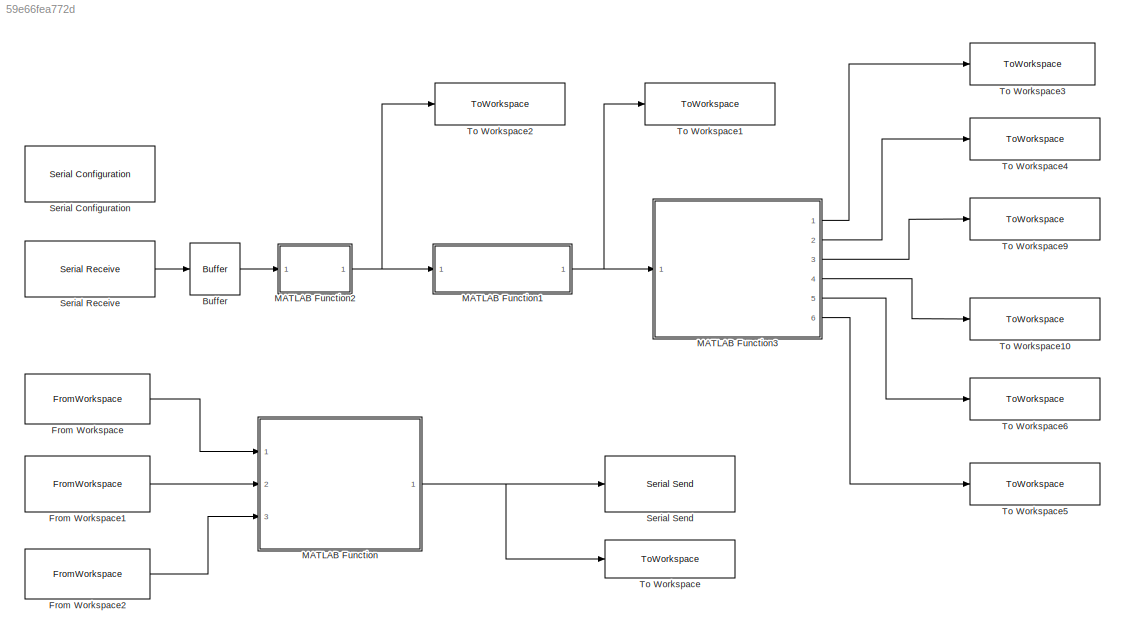
MODEL slx_59e66fea772d
KIND model
CONFIG AbsTol = auto
CONFIG EnableMultiTasking = off
CONFIG FixedStep = auto
CONFIG MaxStep = auto
CONFIG MinStep = auto
CONFIG RelTol = 1e-3
CONFIG SampleTimeConstraint = Unconstrained
CONFIG Solver = VariableStepAuto
CONFIG SolverName = VariableStepAuto
CONFIG StartTime = 0.0
CONFIG StopTime = 15
BLOCK [Buffer] Buffer
  N = 50
  OutputFrames = off
BLOCK [FromWorkspace] From Workspace
  SampleTime = 0
  VariableName = RECEIVE_FAN_SPEED
  ZeroCross = on
BLOCK [FromWorkspace] From Workspace1
  SampleTime = 0
  VariableName = RECEIVE_BULB_STATUS
  ZeroCross = on
BLOCK [FromWorkspace] From Workspace2
  SampleTime = 0
  VariableName = RECEIVE_FOGGER_STATUS
  ZeroCross = on
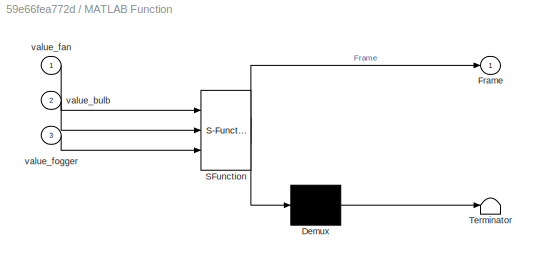
BLOCK [SubSystem] MATLAB Function
  ErrorFcn = Stateflow.Translate.translate
  PermitHierarchicalResolution = ExplicitOnly
  Ports = [3, 1]
  RequestExecContextInheritance = off
  SFBlockType = MATLAB Function
  TreatAsAtomicUnit = on
BLOCK [Demux] MATLAB Function/ Demux 
  Outputs = 1
  Ports = [1, 1]
BLOCK [S-Function] MATLAB Function/ SFunction 
  EnableBusSupport = on
  FunctionName = sf_sfun
  PortCounts = [3 2]
  Ports = [3, 2]
  SFcnIsStateOwnerBlock = off
  SFunctionDeploymentMode = off
  Tag = Stateflow S-Function FRAME_SIM 2
BLOCK [Terminator] MATLAB Function/ Terminator 
BLOCK [Outport] MATLAB Function/Frame
  IconDisplay = Port number
BLOCK [Inport] MATLAB Function/value_bulb
  IconDisplay = Port number
  Port = 2
BLOCK [Inport] MATLAB Function/value_fan
  IconDisplay = Port number
BLOCK [Inport] MATLAB Function/value_fogger
  IconDisplay = Port number
  Port = 3
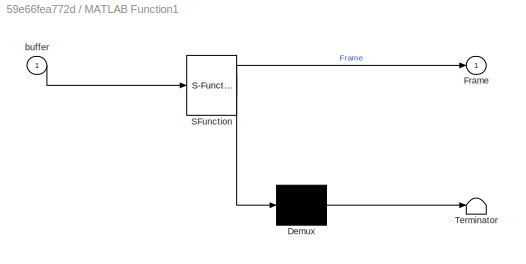
BLOCK [SubSystem] MATLAB Function1
  ErrorFcn = Stateflow.Translate.translate
  PermitHierarchicalResolution = ExplicitOnly
  Ports = [1, 1]
  RequestExecContextInheritance = off
  SFBlockType = MATLAB Function
  TreatAsAtomicUnit = on
BLOCK [Demux] MATLAB Function1/ Demux 
  Outputs = 1
  Ports = [1, 1]
BLOCK [S-Function] MATLAB Function1/ SFunction 
  EnableBusSupport = on
  FunctionName = sf_sfun
  PortCounts = [1 2]
  Ports = [1, 2]
  SFcnIsStateOwnerBlock = off
  SFunctionDeploymentMode = off
  Tag = Stateflow S-Function FRAME_SIM 1
BLOCK [Terminator] MATLAB Function1/ Terminator 
BLOCK [Outport] MATLAB Function1/Frame
  IconDisplay = Port number
BLOCK [Inport] MATLAB Function1/buffer
  IconDisplay = Port number
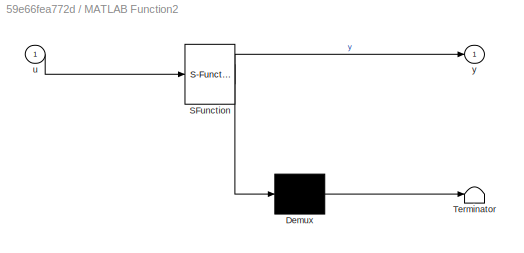
BLOCK [SubSystem] MATLAB Function2
  ErrorFcn = Stateflow.Translate.translate
  PermitHierarchicalResolution = ExplicitOnly
  Ports = [1, 1]
  RequestExecContextInheritance = off
  SFBlockType = MATLAB Function
  TreatAsAtomicUnit = on
BLOCK [Demux] MATLAB Function2/ Demux 
  Outputs = 1
  Ports = [1, 1]
BLOCK [S-Function] MATLAB Function2/ SFunction 
  EnableBusSupport = on
  FunctionName = sf_sfun
  PortCounts = [1 2]
  Ports = [1, 2]
  SFcnIsStateOwnerBlock = off
  SFunctionDeploymentMode = off
  Tag = Stateflow S-Function FRAME_SIM 3
BLOCK [Terminator] MATLAB Function2/ Terminator 
BLOCK [Inport] MATLAB Function2/u
  IconDisplay = Port number
BLOCK [Outport] MATLAB Function2/y
  IconDisplay = Port number
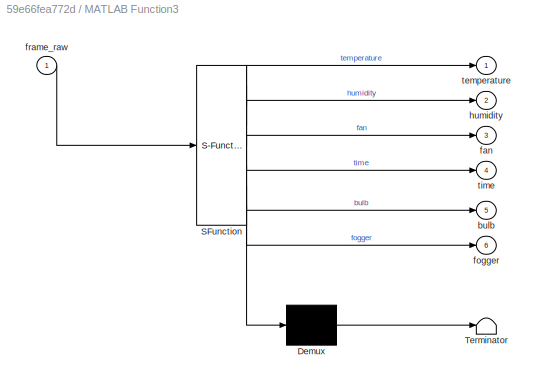
BLOCK [SubSystem] MATLAB Function3
  ErrorFcn = Stateflow.Translate.translate
  PermitHierarchicalResolution = ExplicitOnly
  Ports = [1, 6]
  RequestExecContextInheritance = off
  SFBlockType = MATLAB Function
  TreatAsAtomicUnit = on
BLOCK [Demux] MATLAB Function3/ Demux 
  Outputs = 1
  Ports = [1, 1]
BLOCK [S-Function] MATLAB Function3/ SFunction 
  EnableBusSupport = on
  FunctionName = sf_sfun
  PortCounts = [1 7]
  Ports = [1, 7]
  SFcnIsStateOwnerBlock = off
  SFunctionDeploymentMode = off
  Tag = Stateflow S-Function FRAME_SIM 4
BLOCK [Terminator] MATLAB Function3/ Terminator 
BLOCK [Outport] MATLAB Function3/bulb
  IconDisplay = Port number
  Port = 5
BLOCK [Outport] MATLAB Function3/fan
  IconDisplay = Port number
  Port = 3
BLOCK [Outport] MATLAB Function3/fogger
  IconDisplay = Port number
  Port = 6
BLOCK [Inport] MATLAB Function3/frame_raw
  IconDisplay = Port number
BLOCK [Outport] MATLAB Function3/humidity
  IconDisplay = Port number
  Port = 2
BLOCK [Outport] MATLAB Function3/temperature
  IconDisplay = Port number
BLOCK [Outport] MATLAB Function3/time
  IconDisplay = Port number
  Port = 4
BLOCK [Reference] Serial Configuration  REF=instrumentlib/Serial Configuration
  Ports = []
  Priority = -200000
  SourceBlock = instrumentlib/Serial Configuration
  SourceProductBaseCode = IC
  SourceProductName = Instrument Control Toolbox
  SourceType = Serial Configuration
BLOCK [Reference] Serial Receive  REF=instrumentlib/Serial Receive
  Ports = [0, 1]
  SourceBlock = instrumentlib/Serial Receive
  SourceProductBaseCode = IC
  SourceProductName = Instrument Control Toolbox
  SourceType = Serial Receive
BLOCK [Reference] Serial Send  REF=instrumentlib/Serial Send
  Ports = [1]
  SourceBlock = instrumentlib/Serial Send
  SourceProductBaseCode = IC
  SourceProductName = Instrument Control Toolbox
  SourceType = Serial Send
BLOCK [ToWorkspace] To Workspace
  MaxDataPoints = inf
  Ports = [1]
  SampleTime = -1
  VariableName = SEND_DATA
BLOCK [ToWorkspace] To Workspace1
  MaxDataPoints = inf
  Ports = [1]
  SampleTime = -1
  VariableName = RECEIVE_FRAME
BLOCK [ToWorkspace] To Workspace10
  MaxDataPoints = inf
  Ports = [1]
  SampleTime = -1
  VariableName = RECEIVE_TIME
BLOCK [ToWorkspace] To Workspace2
  MaxDataPoints = inf
  Ports = [1]
  SampleTime = -1
  VariableName = RAW_RECEIVE_DATA
BLOCK [ToWorkspace] To Workspace3
  MaxDataPoints = inf
  Ports = [1]
  SampleTime = -1
  VariableName = RECEIVE_TEMPERATURE
BLOCK [ToWorkspace] To Workspace4
  MaxDataPoints = inf
  Ports = [1]
  SampleTime = -1
  VariableName = RECEIVE_HUMIDITY
BLOCK [ToWorkspace] To Workspace5
  MaxDataPoints = inf
  Ports = [1]
  SampleTime = -1
  VariableName = RECEIVE_FOGGER_STATUS
BLOCK [ToWorkspace] To Workspace6
  MaxDataPoints = inf
  Ports = [1]
  SampleTime = -1
  VariableName = RECEIVE_BULB_STATUS
BLOCK [ToWorkspace] To Workspace9
  MaxDataPoints = inf
  Ports = [1]
  SampleTime = -1
  VariableName = RECEIVE_FAN_SPEED
LINE Buffer:1 -> MATLAB Function2:1
LINE From Workspace1:1 -> MATLAB Function:2
LINE From Workspace2:1 -> MATLAB Function:3
LINE From Workspace:1 -> MATLAB Function:1
NET MATLAB Function1:1 -> MATLAB Function3:1, To Workspace1:1
NET MATLAB Function2:1 -> MATLAB Function1:1, To Workspace2:1
LINE MATLAB Function3:1 -> To Workspace3:1
LINE MATLAB Function3:2 -> To Workspace4:1
LINE MATLAB Function3:3 -> To Workspace9:1
LINE MATLAB Function3:4 -> To Workspace10:1
LINE MATLAB Function3:5 -> To Workspace6:1
LINE MATLAB Function3:6 -> To Workspace5:1
NET MATLAB Function:1 -> Serial Send:1, To Workspace:1
LINE Serial Receive:1 -> Buffer:1
note: NET lines group one-source signal fan-out (src -> all destinations, sorted); 1:1 wires keep LINE
CHART MATLAB Function1 states=1 transitions=1
  STATE_LABEL 'eML_blk_kernel()'
  STATE_LABEL "SCRIPT:\n\nfunction Frame = search_frame_fcn(buffer)\n\nbuffer_size=length(buffer);\nFRAME_SIZE=14;\nstart_code=hex2dec('40');\nend_code=hex2dec('80');\nFrame = zeros(1,14);\n\nfor i=1:(buffer_size-FRAME_SIZE)\n   if( (buffer(i) == start_code) && (buffer(i+(FRAME_SIZE-1)) == end_code))  \n       for j=1:FRAME_SIZE\n           Frame(j) = buffer(i + j-1);\n       end\n       break\n   end\nend\n\n"
CHART MATLAB Function states=1 transitions=1
  STATE_LABEL 'eML_blk_kernel()'
  STATE_LABEL "SCRIPT:\nfunction Frame = fcn(value_fan, value_bulb, value_fogger)\n\nstart_code = hex2dec('40');\n\n% temperature = typecast(swapbytes(single(value_temperature)), 'uint8');\n% humidity = typecast(swapbytes(single(value_humidity)), 'uint8');\n% time = cast(value_time,'uint8');\nfan = cast(value_fan,'uint8');\nbulb = cast(value_bulb,'uint8');\nfogger = cast(value_fogger,'uint8');\n\nend_code = hex2dec('80');\n\n...<+52ch>"
CHART MATLAB Function2 states=1 transitions=1
  STATE_LABEL 'eML_blk_kernel()'
  STATE_LABEL 'SCRIPT:\nfunction y = fcn(u)\n\ny = u;\n'
CHART MATLAB Function3 states=1 transitions=1
  STATE_LABEL 'eML_blk_kernel()'
  STATE_LABEL "SCRIPT:\n\n\nfunction [temperature, humidity, fan, time, bulb, fogger] = decompresion_fcn(frame_raw)\nframe = cast(frame_raw,'uint8');\ntemperature=typecast(frame(2:5),'single');\nhumidity=typecast(frame(6:9),'single');\nfan=typecast(frame(10),'uint8');\ntime=typecast(frame(11),'uint8');\nbulb=typecast(frame(12),'uint8');\nfogger=typecast(frame(13),'uint8');\nend"
